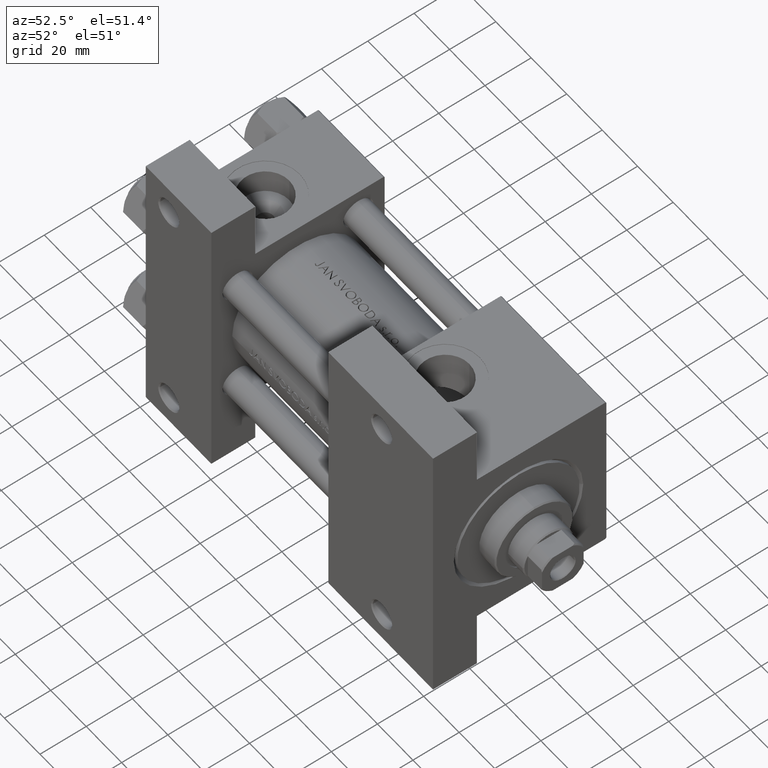
[diagram: clean part render]
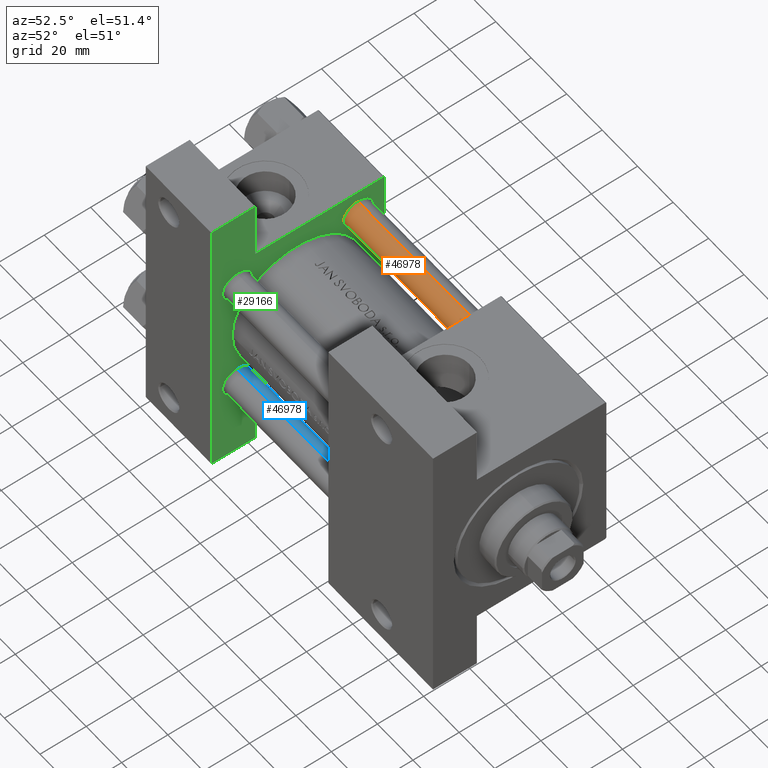
[diagram: same view with three faces highlighted in distinct colors, each labeled with its STEP entity id]
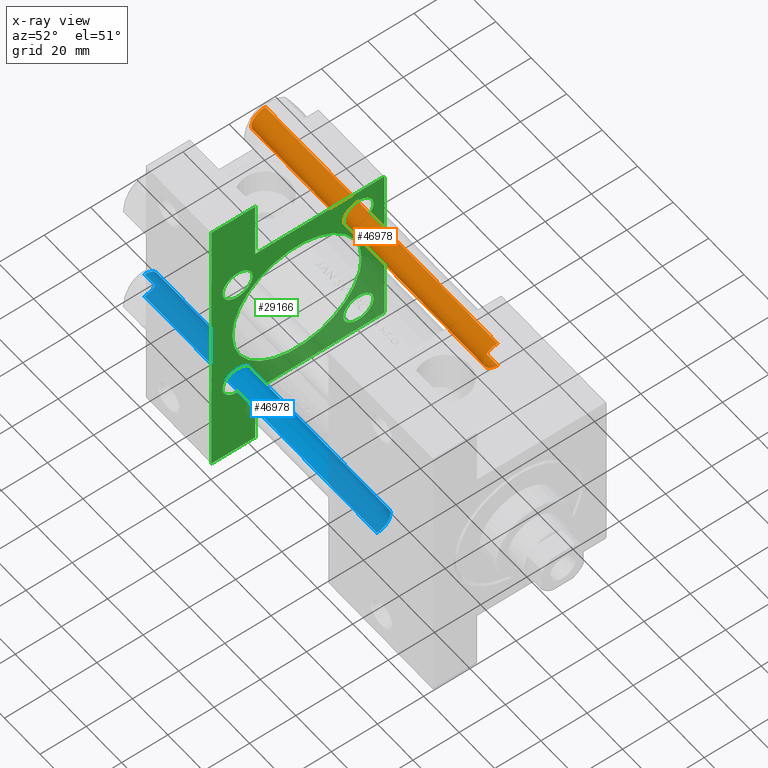
[diagram: x-ray of the same camera — body ghosted, the three highlighted faces saturated]
A machine part, auxiliary view with three faces highlighted in distinct colors.
The next image is the same camera in x-ray (body ghosted, the three faces saturated) — at least one of them is partly hidden behind the body in this view.
Their STEP definitions:

[orange] entity #46978 — the highlighted cylindrical surface (edge-blend (fillet) strip) has radius 6 mm, axis along (-1, -0, -0).
#67 = CIRCLE ( 'NONE', #46980, 6.000000000000000888 ) ;
#1688 = DIRECTION ( 'NONE',  ( -1.000000000000000000, 0.000000000000000000, 0.000000000000000000 ) ) ;
#2049 = CARTESIAN_POINT ( 'NONE',  ( 6.000000000000000888, 7.347880794884120722E-16, 131.4999999999999716 ) ) ;
#3559 = CARTESIAN_POINT ( 'NONE',  ( 6.000000000000000888, 7.347880794884120722E-16, 0.5000000000000281997 ) ) ;
#4503 = DIRECTION ( 'NONE',  ( 1.000000000000000000, 0.000000000000000000, 0.000000000000000000 ) ) ;
#6035 = VERTEX_POINT ( 'NONE', #36341 ) ;
#8252 = DIRECTION ( 'NONE',  ( 0.000000000000000000, 0.000000000000000000, -1.000000000000000000 ) ) ;
#9251 = VERTEX_POINT ( 'NONE', #30101 ) ;
#9879 = CARTESIAN_POINT ( 'NONE',  ( -6.000000000000000888, 0.000000000000000000, 132.0000000000000000 ) ) ;
#14152 = EDGE_CURVE ( 'NONE', #22001, #36822, #36739, .T. ) ;
#15255 = ORIENTED_EDGE ( 'NONE', *, *, #22601, .T. ) ;
#17304 = CIRCLE ( 'NONE', #36418, 6.000000000000000888 ) ;
#18548 = CARTESIAN_POINT ( 'NONE',  ( 0.000000000000000000, 0.000000000000000000, 0.5000000000000281997 ) ) ;
#20353 = CARTESIAN_POINT ( 'NONE',  ( 0.000000000000000000, 0.000000000000000000, 132.0000000000000000 ) ) ;
#20406 = CARTESIAN_POINT ( 'NONE',  ( 0.000000000000000000, 0.000000000000000000, 131.4999999999999716 ) ) ;
#22001 = VERTEX_POINT ( 'NONE', #2049 ) ;
#22075 = LINE ( 'NONE', #9879, #38772 ) ;
#22284 = DIRECTION ( 'NONE',  ( -0.000000000000000000, -0.000000000000000000, 1.000000000000000000 ) ) ;
#22601 = EDGE_CURVE ( 'NONE', #6035, #36822, #67, .T. ) ;
#25609 = EDGE_LOOP ( 'NONE', ( #48183, #37180, #43455, #15255 ) ) ;
#29326 = DIRECTION ( 'NONE',  ( -0.000000000000000000, -0.000000000000000000, -1.000000000000000000 ) ) ;
#30101 = CARTESIAN_POINT ( 'NONE',  ( -6.000000000000000888, 0.000000000000000000, 131.4999999999999716 ) ) ;
#31848 = CYLINDRICAL_SURFACE ( 'NONE', #47754, 6.000000000000000888 ) ;
#35332 = FACE_OUTER_BOUND ( 'NONE', #25609, .T. ) ;
#35572 = DIRECTION ( 'NONE',  ( -0.000000000000000000, -0.000000000000000000, -1.000000000000000000 ) ) ;
#36341 = CARTESIAN_POINT ( 'NONE',  ( -6.000000000000000888, 0.000000000000000000, 0.5000000000000281997 ) ) ;
#36418 = AXIS2_PLACEMENT_3D ( 'NONE', #20406, #8252, #4503 ) ;
#36487 = CARTESIAN_POINT ( 'NONE',  ( 6.000000000000000888, 7.347880794884120722E-16, 132.0000000000000000 ) ) ;
#36739 = LINE ( 'NONE', #36487, #41134 ) ;
#36822 = VERTEX_POINT ( 'NONE', #3559 ) ;
#37180 = ORIENTED_EDGE ( 'NONE', *, *, #40817, .T. ) ;
#38772 = VECTOR ( 'NONE', #29326, 1000.000000000000000 ) ;
#39825 = EDGE_CURVE ( 'NONE', #9251, #6035, #22075, .T. ) ;
#40214 = DIRECTION ( 'NONE',  ( -0.000000000000000000, -0.000000000000000000, -1.000000000000000000 ) ) ;
#40817 = EDGE_CURVE ( 'NONE', #22001, #9251, #17304, .T. ) ;
#41134 = VECTOR ( 'NONE', #40214, 1000.000000000000000 ) ;
#41464 = DIRECTION ( 'NONE',  ( 1.000000000000000000, 0.000000000000000000, 0.000000000000000000 ) ) ;
#43455 = ORIENTED_EDGE ( 'NONE', *, *, #39825, .T. ) ;
#46978 = ADVANCED_FACE ( 'NONE', ( #35332 ), #31848, .T. ) ;
#46980 = AXIS2_PLACEMENT_3D ( 'NONE', #18548, #22284, #41464 ) ;
#47754 = AXIS2_PLACEMENT_3D ( 'NONE', #20353, #35572, #1688 ) ;
#48183 = ORIENTED_EDGE ( 'NONE', *, *, #14152, .F. ) ;

[blue] entity #46978 — the highlighted cylindrical surface (edge-blend (fillet) strip) has radius 6 mm, axis along (-1, 0, 0).
#67 = CIRCLE ( 'NONE', #46980, 6.000000000000000888 ) ;
#1688 = DIRECTION ( 'NONE',  ( -1.000000000000000000, 0.000000000000000000, 0.000000000000000000 ) ) ;
#2049 = CARTESIAN_POINT ( 'NONE',  ( 6.000000000000000888, 7.347880794884120722E-16, 131.4999999999999716 ) ) ;
#3559 = CARTESIAN_POINT ( 'NONE',  ( 6.000000000000000888, 7.347880794884120722E-16, 0.5000000000000281997 ) ) ;
#4503 = DIRECTION ( 'NONE',  ( 1.000000000000000000, 0.000000000000000000, 0.000000000000000000 ) ) ;
#6035 = VERTEX_POINT ( 'NONE', #36341 ) ;
#8252 = DIRECTION ( 'NONE',  ( 0.000000000000000000, 0.000000000000000000, -1.000000000000000000 ) ) ;
#9251 = VERTEX_POINT ( 'NONE', #30101 ) ;
#9879 = CARTESIAN_POINT ( 'NONE',  ( -6.000000000000000888, 0.000000000000000000, 132.0000000000000000 ) ) ;
#14152 = EDGE_CURVE ( 'NONE', #22001, #36822, #36739, .T. ) ;
#15255 = ORIENTED_EDGE ( 'NONE', *, *, #22601, .T. ) ;
#17304 = CIRCLE ( 'NONE', #36418, 6.000000000000000888 ) ;
#18548 = CARTESIAN_POINT ( 'NONE',  ( 0.000000000000000000, 0.000000000000000000, 0.5000000000000281997 ) ) ;
#20353 = CARTESIAN_POINT ( 'NONE',  ( 0.000000000000000000, 0.000000000000000000, 132.0000000000000000 ) ) ;
#20406 = CARTESIAN_POINT ( 'NONE',  ( 0.000000000000000000, 0.000000000000000000, 131.4999999999999716 ) ) ;
#22001 = VERTEX_POINT ( 'NONE', #2049 ) ;
#22075 = LINE ( 'NONE', #9879, #38772 ) ;
#22284 = DIRECTION ( 'NONE',  ( -0.000000000000000000, -0.000000000000000000, 1.000000000000000000 ) ) ;
#22601 = EDGE_CURVE ( 'NONE', #6035, #36822, #67, .T. ) ;
#25609 = EDGE_LOOP ( 'NONE', ( #48183, #37180, #43455, #15255 ) ) ;
#29326 = DIRECTION ( 'NONE',  ( -0.000000000000000000, -0.000000000000000000, -1.000000000000000000 ) ) ;
#30101 = CARTESIAN_POINT ( 'NONE',  ( -6.000000000000000888, 0.000000000000000000, 131.4999999999999716 ) ) ;
#31848 = CYLINDRICAL_SURFACE ( 'NONE', #47754, 6.000000000000000888 ) ;
#35332 = FACE_OUTER_BOUND ( 'NONE', #25609, .T. ) ;
#35572 = DIRECTION ( 'NONE',  ( -0.000000000000000000, -0.000000000000000000, -1.000000000000000000 ) ) ;
#36341 = CARTESIAN_POINT ( 'NONE',  ( -6.000000000000000888, 0.000000000000000000, 0.5000000000000281997 ) ) ;
#36418 = AXIS2_PLACEMENT_3D ( 'NONE', #20406, #8252, #4503 ) ;
#36487 = CARTESIAN_POINT ( 'NONE',  ( 6.000000000000000888, 7.347880794884120722E-16, 132.0000000000000000 ) ) ;
#36739 = LINE ( 'NONE', #36487, #41134 ) ;
#36822 = VERTEX_POINT ( 'NONE', #3559 ) ;
#37180 = ORIENTED_EDGE ( 'NONE', *, *, #40817, .T. ) ;
#38772 = VECTOR ( 'NONE', #29326, 1000.000000000000000 ) ;
#39825 = EDGE_CURVE ( 'NONE', #9251, #6035, #22075, .T. ) ;
#40214 = DIRECTION ( 'NONE',  ( -0.000000000000000000, -0.000000000000000000, -1.000000000000000000 ) ) ;
#40817 = EDGE_CURVE ( 'NONE', #22001, #9251, #17304, .T. ) ;
#41134 = VECTOR ( 'NONE', #40214, 1000.000000000000000 ) ;
#41464 = DIRECTION ( 'NONE',  ( 1.000000000000000000, 0.000000000000000000, 0.000000000000000000 ) ) ;
#43455 = ORIENTED_EDGE ( 'NONE', *, *, #39825, .T. ) ;
#46978 = ADVANCED_FACE ( 'NONE', ( #35332 ), #31848, .T. ) ;
#46980 = AXIS2_PLACEMENT_3D ( 'NONE', #18548, #22284, #41464 ) ;
#47754 = AXIS2_PLACEMENT_3D ( 'NONE', #20353, #35572, #1688 ) ;
#48183 = ORIENTED_EDGE ( 'NONE', *, *, #14152, .F. ) ;

[green] entity #29166 — the highlighted planar face has unit normal (-1, 0, -0).
#93 = EDGE_CURVE ( 'NONE', #33015, #3739, #32619, .T. ) ;
#1339 = ORIENTED_EDGE ( 'NONE', *, *, #5503, .F. ) ;
#1469 = LINE ( 'NONE', #12676, #18112 ) ;
#1551 = ORIENTED_EDGE ( 'NONE', *, *, #33402, .T. ) ;
#1718 = CARTESIAN_POINT ( 'NONE',  ( 37.00000000000000000, -63.49999999999998579, -18.50000000000000355 ) ) ;
#1946 = VERTEX_POINT ( 'NONE', #46453 ) ;
#2017 = ORIENTED_EDGE ( 'NONE', *, *, #29103, .T. ) ;
#2093 = LINE ( 'NONE', #32014, #42161 ) ;
#2596 = LINE ( 'NONE', #13286, #40327 ) ;
#2673 = EDGE_LOOP ( 'NONE', ( #23467, #9494 ) ) ;
#2908 = AXIS2_PLACEMENT_3D ( 'NONE', #31790, #16808, #17050 ) ;
#2948 = AXIS2_PLACEMENT_3D ( 'NONE', #39127, #19947, #28175 ) ;
#3085 = CIRCLE ( 'NONE', #38883, 6.500000000000002665 ) ;
#3509 = ORIENTED_EDGE ( 'NONE', *, *, #27384, .F. ) ;
#3739 = VERTEX_POINT ( 'NONE', #27313 ) ;
#4337 = DIRECTION ( 'NONE',  ( 0.000000000000000000, 0.000000000000000000, 1.000000000000000000 ) ) ;
#4502 = CIRCLE ( 'NONE', #2908, 6.500000000000002665 ) ;
#4708 = DIRECTION ( 'NONE',  ( -0.000000000000000000, -0.7071067811865474617, -0.7071067811865474617 ) ) ;
#5503 = EDGE_CURVE ( 'NONE', #27741, #17417, #7592, .T. ) ;
#5856 = DIRECTION ( 'NONE',  ( -1.000000000000000000, 0.000000000000000000, -0.000000000000000000 ) ) ;
#6324 = DIRECTION ( 'NONE',  ( 0.000000000000000000, 0.000000000000000000, -1.000000000000000000 ) ) ;
#6393 = CARTESIAN_POINT ( 'NONE',  ( 37.00000000000000000, -37.50000000000000711, 36.99999999999999289 ) ) ;
#7592 = CIRCLE ( 'NONE', #38586, 28.00000000000000000 ) ;
#8056 = VERTEX_POINT ( 'NONE', #28022 ) ;
#8267 = CARTESIAN_POINT ( 'NONE',  ( 37.00000000000000000, -26.14999999999999147, 19.64999999999997371 ) ) ;
#8496 = VECTOR ( 'NONE', #40273, 1000.000000000000000 ) ;
#8606 = VERTEX_POINT ( 'NONE', #45980 ) ;
#8618 = DIRECTION ( 'NONE',  ( 0.000000000000000000, -1.000000000000000000, -9.251858538542972814E-17 ) ) ;
#9065 = VERTEX_POINT ( 'NONE', #31852 ) ;
#9185 = ORIENTED_EDGE ( 'NONE', *, *, #38207, .T. ) ;
#9494 = ORIENTED_EDGE ( 'NONE', *, *, #19362, .T. ) ;
#9889 = VERTEX_POINT ( 'NONE', #42617 ) ;
#10668 = DIRECTION ( 'NONE',  ( -1.000000000000000000, 0.000000000000000000, -0.000000000000000000 ) ) ;
#11212 = ORIENTED_EDGE ( 'NONE', *, *, #39155, .F. ) ;
#11527 = CARTESIAN_POINT ( 'NONE',  ( 37.00000000000000000, -26.14999999999999147, -26.15000000000000924 ) ) ;
#11689 = CARTESIAN_POINT ( 'NONE',  ( 37.00000000000000711, 0.000000000000000000, -0.5000000000000004441 ) ) ;
#11832 = EDGE_CURVE ( 'NONE', #30064, #37690, #23121, .T. ) ;
#11887 = CARTESIAN_POINT ( 'NONE',  ( 37.00000000000000000, 36.99999999999999289, 37.50000000000000000 ) ) ;
#12068 = CIRCLE ( 'NONE', #39908, 6.500000000000002665 ) ;
#12339 = LINE ( 'NONE', #35749, #42728 ) ;
#12676 = CARTESIAN_POINT ( 'NONE',  ( 37.00000000000000000, -63.49999999999998579, 26.72167621838007889 ) ) ;
#13286 = CARTESIAN_POINT ( 'NONE',  ( 37.00000000000000000, 37.49999999999999289, 37.50000000000000000 ) ) ;
#13414 = CIRCLE ( 'NONE', #33374, 6.500000000000030198 ) ;
#13583 = VERTEX_POINT ( 'NONE', #16488 ) ;
#13650 = FACE_BOUND ( 'NONE', #17439, .T. ) ;
#13891 = VECTOR ( 'NONE', #44512, 1000.000000000000000 ) ;
#13898 = EDGE_CURVE ( 'NONE', #9065, #8606, #21847, .T. ) ;
#14080 = EDGE_CURVE ( 'NONE', #39576, #48201, #12339, .T. ) ;
#14119 = LINE ( 'NONE', #48494, #13891 ) ;
#14146 = FACE_BOUND ( 'NONE', #36481, .T. ) ;
#15168 = EDGE_LOOP ( 'NONE', ( #40949, #47792, #1551, #19194, #30378, #38427, #20688, #41791, #11212, #9185 ) ) ;
#15871 = CIRCLE ( 'NONE', #42921, 6.500000000000002665 ) ;
#16172 = DIRECTION ( 'NONE',  ( 0.000000000000000000, -1.734723475976806848E-16, -1.000000000000000000 ) ) ;
#16488 = CARTESIAN_POINT ( 'NONE',  ( 37.00000000000000000, 26.14999999999999858, 19.64999999999999858 ) ) ;
#16808 = DIRECTION ( 'NONE',  ( -1.000000000000000000, 0.000000000000000000, -0.000000000000000000 ) ) ;
#16898 = DIRECTION ( 'NONE',  ( -0.000000000000000000, 1.000000000000000000, 0.000000000000000000 ) ) ;
#17050 = DIRECTION ( 'NONE',  ( 0.000000000000000000, 0.000000000000000000, 1.000000000000000000 ) ) ;
#17417 = VERTEX_POINT ( 'NONE', #26016 ) ;
#17439 = EDGE_LOOP ( 'NONE', ( #38412, #28483 ) ) ;
#17912 = DIRECTION ( 'NONE',  ( -1.000000000000000000, 0.000000000000000000, -0.000000000000000000 ) ) ;
#18112 = VECTOR ( 'NONE', #16172, 1000.000000000000000 ) ;
#18439 = VECTOR ( 'NONE', #4708, 1000.000000000000114 ) ;
#18980 = EDGE_CURVE ( 'NONE', #48335, #35044, #24611, .T. ) ;
#19169 = CARTESIAN_POINT ( 'NONE',  ( 37.00000000000000000, 26.14999999999999858, 26.15000000000000213 ) ) ;
#19194 = ORIENTED_EDGE ( 'NONE', *, *, #93, .F. ) ;
#19362 = EDGE_CURVE ( 'NONE', #1946, #9889, #13414, .T. ) ;
#19947 = DIRECTION ( 'NONE',  ( -1.000000000000000000, 0.000000000000000000, -0.000000000000000000 ) ) ;
#19993 = AXIS2_PLACEMENT_3D ( 'NONE', #37066, #10668, #44284 ) ;
#20293 = ORIENTED_EDGE ( 'NONE', *, *, #45238, .T. ) ;
#20609 = EDGE_CURVE ( 'NONE', #8606, #39576, #2093, .T. ) ;
#20635 = CARTESIAN_POINT ( 'NONE',  ( 37.00000000000000000, 36.99999999999999289, 37.50000000000000000 ) ) ;
#20688 = ORIENTED_EDGE ( 'NONE', *, *, #20609, .F. ) ;
#21095 = DIRECTION ( 'NONE',  ( 1.000000000000000000, -0.000000000000000000, 0.000000000000000000 ) ) ;
#21343 = CARTESIAN_POINT ( 'NONE',  ( 37.00000000000001421, 63.50000000000001421, -18.50000000000000355 ) ) ;
#21401 = CARTESIAN_POINT ( 'NONE',  ( 37.00000000000000000, -26.14999999999999147, 26.15000000000000924 ) ) ;
#21658 = DIRECTION ( 'NONE',  ( 0.000000000000000000, 0.000000000000000000, 1.000000000000000000 ) ) ;
#21847 = LINE ( 'NONE', #21343, #8496 ) ;
#22030 = CIRCLE ( 'NONE', #2948, 6.500000000000037303 ) ;
#22344 = EDGE_LOOP ( 'NONE', ( #20293, #33249 ) ) ;
#22533 = ORIENTED_EDGE ( 'NONE', *, *, #34415, .T. ) ;
#22716 = CARTESIAN_POINT ( 'NONE',  ( 37.00000000000000000, -63.50000000000000000, -18.50000000000000355 ) ) ;
#22812 = DIRECTION ( 'NONE',  ( 0.000000000000000000, 0.000000000000000000, 1.000000000000000000 ) ) ;
#22859 = AXIS2_PLACEMENT_3D ( 'NONE', #11527, #44918, #41916 ) ;
#23055 = CARTESIAN_POINT ( 'NONE',  ( 37.00000000000000000, 26.14999999999999858, -26.15000000000000213 ) ) ;
#23121 = LINE ( 'NONE', #30374, #26055 ) ;
#23203 = VERTEX_POINT ( 'NONE', #40665 ) ;
#23223 = VECTOR ( 'NONE', #16898, 1000.000000000000000 ) ;
#23467 = ORIENTED_EDGE ( 'NONE', *, *, #39367, .T. ) ;
#23541 = VERTEX_POINT ( 'NONE', #47273 ) ;
#24371 = CARTESIAN_POINT ( 'NONE',  ( 37.00000000000000000, -37.50000000000000711, 36.99999999999999289 ) ) ;
#24611 = CIRCLE ( 'NONE', #38900, 6.500000000000037303 ) ;
#25900 = CARTESIAN_POINT ( 'NONE',  ( 37.00000000000001421, 63.50000000000000000, -37.50000000000002132 ) ) ;
#26016 = CARTESIAN_POINT ( 'NONE',  ( 37.00000000000000711, 3.429011037612589276E-15, -28.50000000000000000 ) ) ;
#26055 = VECTOR ( 'NONE', #26867, 1000.000000000000000 ) ;
#26730 = CARTESIAN_POINT ( 'NONE',  ( 37.00000000000000000, 37.49999999999999289, 37.00000000000000000 ) ) ;
#26867 = DIRECTION ( 'NONE',  ( 0.000000000000000000, -1.000000000000000000, -9.251858538542971581E-17 ) ) ;
#27313 = CARTESIAN_POINT ( 'NONE',  ( 37.00000000000000000, -37.50000000000000000, -18.50000000000000355 ) ) ;
#27384 = EDGE_CURVE ( 'NONE', #17417, #27741, #47024, .T. ) ;
#27500 = EDGE_LOOP ( 'NONE', ( #1339, #3509 ) ) ;
#27741 = VERTEX_POINT ( 'NONE', #36993 ) ;
#28022 = CARTESIAN_POINT ( 'NONE',  ( 37.00000000000000000, 26.14999999999999858, -32.65000000000000568 ) ) ;
#28175 = DIRECTION ( 'NONE',  ( 0.000000000000000000, 0.000000000000000000, 1.000000000000000000 ) ) ;
#28194 = EDGE_CURVE ( 'NONE', #37690, #39812, #46551, .T. ) ;
#28483 = ORIENTED_EDGE ( 'NONE', *, *, #18980, .T. ) ;
#28611 = FACE_OUTER_BOUND ( 'NONE', #15168, .T. ) ;
#28730 = AXIS2_PLACEMENT_3D ( 'NONE', #36812, #21095, #29097 ) ;
#28786 = DIRECTION ( 'NONE',  ( 0.000000000000000000, 0.000000000000000000, 1.000000000000000000 ) ) ;
#29097 = DIRECTION ( 'NONE',  ( 0.000000000000000000, 0.000000000000000000, 1.000000000000000000 ) ) ;
#29103 = EDGE_CURVE ( 'NONE', #23541, #13583, #12068, .T. ) ;
#29166 = ADVANCED_FACE ( 'NONE', ( #36825, #32355, #13650, #14146, #47768, #28611 ), #32861, .F. ) ;
#29803 = VERTEX_POINT ( 'NONE', #26730 ) ;
#30064 = VERTEX_POINT ( 'NONE', #11887 ) ;
#30374 = CARTESIAN_POINT ( 'NONE',  ( 37.00000000000000000, 37.49999999999999289, 37.50000000000000000 ) ) ;
#30378 = ORIENTED_EDGE ( 'NONE', *, *, #37370, .T. ) ;
#31639 = LINE ( 'NONE', #20635, #32388 ) ;
#31790 = CARTESIAN_POINT ( 'NONE',  ( 37.00000000000000000, 26.14999999999999858, 26.15000000000000213 ) ) ;
#31852 = CARTESIAN_POINT ( 'NONE',  ( 37.00000000000000711, 37.50000000000000711, -18.50000000000000355 ) ) ;
#32014 = CARTESIAN_POINT ( 'NONE',  ( 37.00000000000001421, 63.50000000000001421, 26.72167621838005047 ) ) ;
#32355 = FACE_BOUND ( 'NONE', #22344, .T. ) ;
#32388 = VECTOR ( 'NONE', #35848, 1000.000000000000114 ) ;
#32619 = LINE ( 'NONE', #1718, #23223 ) ;
#32861 = PLANE ( 'NONE',  #19993 ) ;
#33015 = VERTEX_POINT ( 'NONE', #22716 ) ;
#33249 = ORIENTED_EDGE ( 'NONE', *, *, #43087, .T. ) ;
#33374 = AXIS2_PLACEMENT_3D ( 'NONE', #44204, #5856, #28786 ) ;
#33402 = EDGE_CURVE ( 'NONE', #39812, #3739, #14119, .T. ) ;
#34392 = DIRECTION ( 'NONE',  ( 0.000000000000000000, 0.000000000000000000, 1.000000000000000000 ) ) ;
#34415 = EDGE_CURVE ( 'NONE', #13583, #23541, #4502, .T. ) ;
#34809 = CIRCLE ( 'NONE', #22859, 6.500000000000030198 ) ;
#35013 = CARTESIAN_POINT ( 'NONE',  ( 37.00000000000000000, -63.50000000000000000, -37.49999999999999289 ) ) ;
#35044 = VERTEX_POINT ( 'NONE', #8267 ) ;
#35174 = EDGE_CURVE ( 'NONE', #35044, #48335, #22030, .T. ) ;
#35749 = CARTESIAN_POINT ( 'NONE',  ( 37.00000000000000000, 37.49999999999999289, -37.50000000000000000 ) ) ;
#35848 = DIRECTION ( 'NONE',  ( 0.000000000000000000, -0.7071067811865474617, 0.7071067811865474617 ) ) ;
#36452 = CARTESIAN_POINT ( 'NONE',  ( 37.00000000000000000, -37.00000000000000711, 37.49999999999999289 ) ) ;
#36481 = EDGE_LOOP ( 'NONE', ( #22533, #2017 ) ) ;
#36812 = CARTESIAN_POINT ( 'NONE',  ( 37.00000000000000711, 0.000000000000000000, -0.5000000000000004441 ) ) ;
#36825 = FACE_BOUND ( 'NONE', #2673, .T. ) ;
#36993 = CARTESIAN_POINT ( 'NONE',  ( 37.00000000000000711, 0.000000000000000000, 27.50000000000000000 ) ) ;
#37066 = CARTESIAN_POINT ( 'NONE',  ( 37.00000000000000000, 0.000000000000000000, 0.000000000000000000 ) ) ;
#37370 = EDGE_CURVE ( 'NONE', #33015, #48201, #1469, .T. ) ;
#37690 = VERTEX_POINT ( 'NONE', #36452 ) ;
#38137 = CARTESIAN_POINT ( 'NONE',  ( 37.00000000000000000, -26.14999999999999147, 32.65000000000004832 ) ) ;
#38207 = EDGE_CURVE ( 'NONE', #29803, #30064, #31639, .T. ) ;
#38240 = DIRECTION ( 'NONE',  ( -1.000000000000000000, 0.000000000000000000, -0.000000000000000000 ) ) ;
#38412 = ORIENTED_EDGE ( 'NONE', *, *, #35174, .T. ) ;
#38427 = ORIENTED_EDGE ( 'NONE', *, *, #14080, .F. ) ;
#38463 = DIRECTION ( 'NONE',  ( -1.000000000000000000, 0.000000000000000000, -0.000000000000000000 ) ) ;
#38586 = AXIS2_PLACEMENT_3D ( 'NONE', #11689, #41098, #38830 ) ;
#38830 = DIRECTION ( 'NONE',  ( 0.000000000000000000, 0.000000000000000000, 1.000000000000000000 ) ) ;
#38883 = AXIS2_PLACEMENT_3D ( 'NONE', #38946, #38463, #4337 ) ;
#38900 = AXIS2_PLACEMENT_3D ( 'NONE', #21401, #17912, #21658 ) ;
#38946 = CARTESIAN_POINT ( 'NONE',  ( 37.00000000000000000, 26.14999999999999858, -26.15000000000000213 ) ) ;
#39127 = CARTESIAN_POINT ( 'NONE',  ( 37.00000000000000000, -26.14999999999999147, 26.15000000000000924 ) ) ;
#39155 = EDGE_CURVE ( 'NONE', #29803, #9065, #2596, .T. ) ;
#39367 = EDGE_CURVE ( 'NONE', #9889, #1946, #34809, .T. ) ;
#39576 = VERTEX_POINT ( 'NONE', #25900 ) ;
#39702 = DIRECTION ( 'NONE',  ( 0.000000000000000000, -1.734723475976806848E-16, -1.000000000000000000 ) ) ;
#39812 = VERTEX_POINT ( 'NONE', #6393 ) ;
#39908 = AXIS2_PLACEMENT_3D ( 'NONE', #19169, #45587, #34392 ) ;
#40273 = DIRECTION ( 'NONE',  ( 2.668805347656626678E-16, 1.000000000000000000, 0.000000000000000000 ) ) ;
#40327 = VECTOR ( 'NONE', #6324, 1000.000000000000000 ) ;
#40665 = CARTESIAN_POINT ( 'NONE',  ( 37.00000000000000000, 26.14999999999999858, -19.65000000000000213 ) ) ;
#40949 = ORIENTED_EDGE ( 'NONE', *, *, #11832, .T. ) ;
#41098 = DIRECTION ( 'NONE',  ( 1.000000000000000000, -0.000000000000000000, 0.000000000000000000 ) ) ;
#41791 = ORIENTED_EDGE ( 'NONE', *, *, #13898, .F. ) ;
#41916 = DIRECTION ( 'NONE',  ( 0.000000000000000000, 0.000000000000000000, 1.000000000000000000 ) ) ;
#42161 = VECTOR ( 'NONE', #39702, 1000.000000000000000 ) ;
#42617 = CARTESIAN_POINT ( 'NONE',  ( 37.00000000000000000, -26.14999999999999147, -32.65000000000004121 ) ) ;
#42728 = VECTOR ( 'NONE', #8618, 1000.000000000000000 ) ;
#42921 = AXIS2_PLACEMENT_3D ( 'NONE', #23055, #38240, #22812 ) ;
#43087 = EDGE_CURVE ( 'NONE', #23203, #8056, #3085, .T. ) ;
#44204 = CARTESIAN_POINT ( 'NONE',  ( 37.00000000000000000, -26.14999999999999147, -26.15000000000000924 ) ) ;
#44284 = DIRECTION ( 'NONE',  ( -0.000000000000000000, 0.000000000000000000, 1.000000000000000000 ) ) ;
#44512 = DIRECTION ( 'NONE',  ( 0.000000000000000000, 9.251858538542971581E-17, -1.000000000000000000 ) ) ;
#44918 = DIRECTION ( 'NONE',  ( -1.000000000000000000, 0.000000000000000000, -0.000000000000000000 ) ) ;
#45238 = EDGE_CURVE ( 'NONE', #8056, #23203, #15871, .T. ) ;
#45587 = DIRECTION ( 'NONE',  ( -1.000000000000000000, 0.000000000000000000, -0.000000000000000000 ) ) ;
#45980 = CARTESIAN_POINT ( 'NONE',  ( 37.00000000000001421, 63.50000000000000000, -18.50000000000000355 ) ) ;
#46453 = CARTESIAN_POINT ( 'NONE',  ( 37.00000000000000000, -26.14999999999999147, -19.64999999999998082 ) ) ;
#46551 = LINE ( 'NONE', #24371, #18439 ) ;
#47024 = CIRCLE ( 'NONE', #28730, 28.00000000000000000 ) ;
#47273 = CARTESIAN_POINT ( 'NONE',  ( 37.00000000000000000, 26.14999999999999858, 32.65000000000001279 ) ) ;
#47768 = FACE_BOUND ( 'NONE', #27500, .T. ) ;
#47792 = ORIENTED_EDGE ( 'NONE', *, *, #28194, .T. ) ;
#48201 = VERTEX_POINT ( 'NONE', #35013 ) ;
#48335 = VERTEX_POINT ( 'NONE', #38137 ) ;
#48494 = CARTESIAN_POINT ( 'NONE',  ( 37.00000000000000000, -37.50000000000000711, 37.49999999999999289 ) ) ;